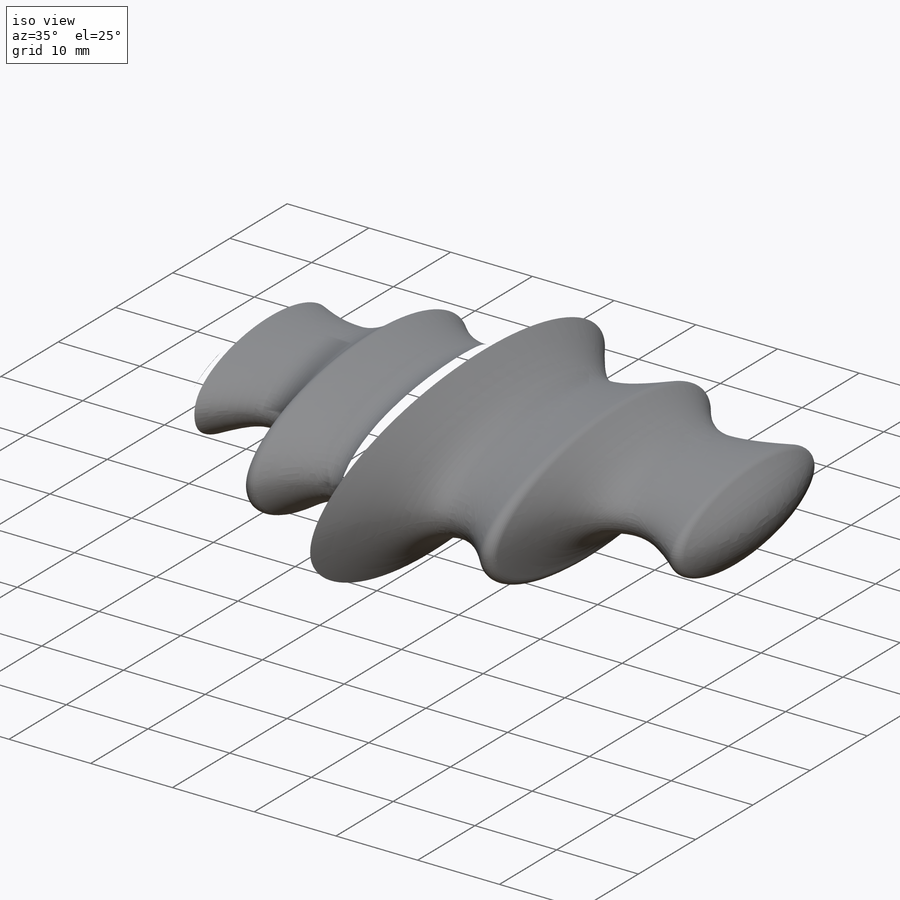
[diagram: iso view]
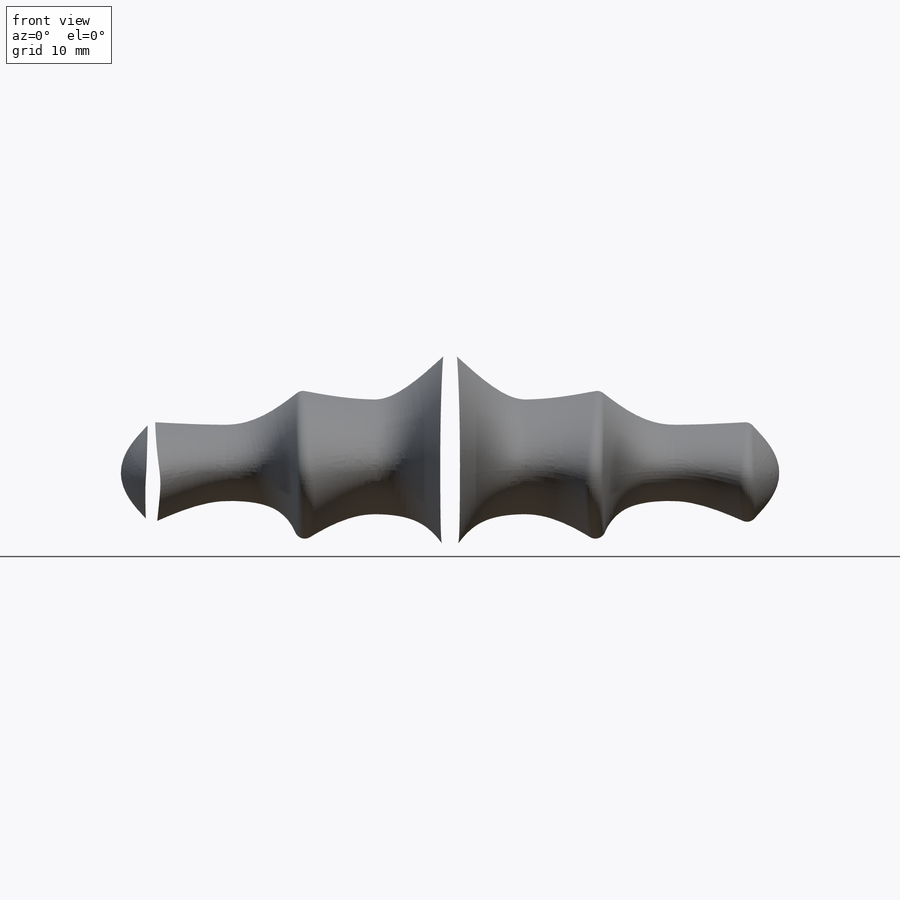
[diagram: front view]
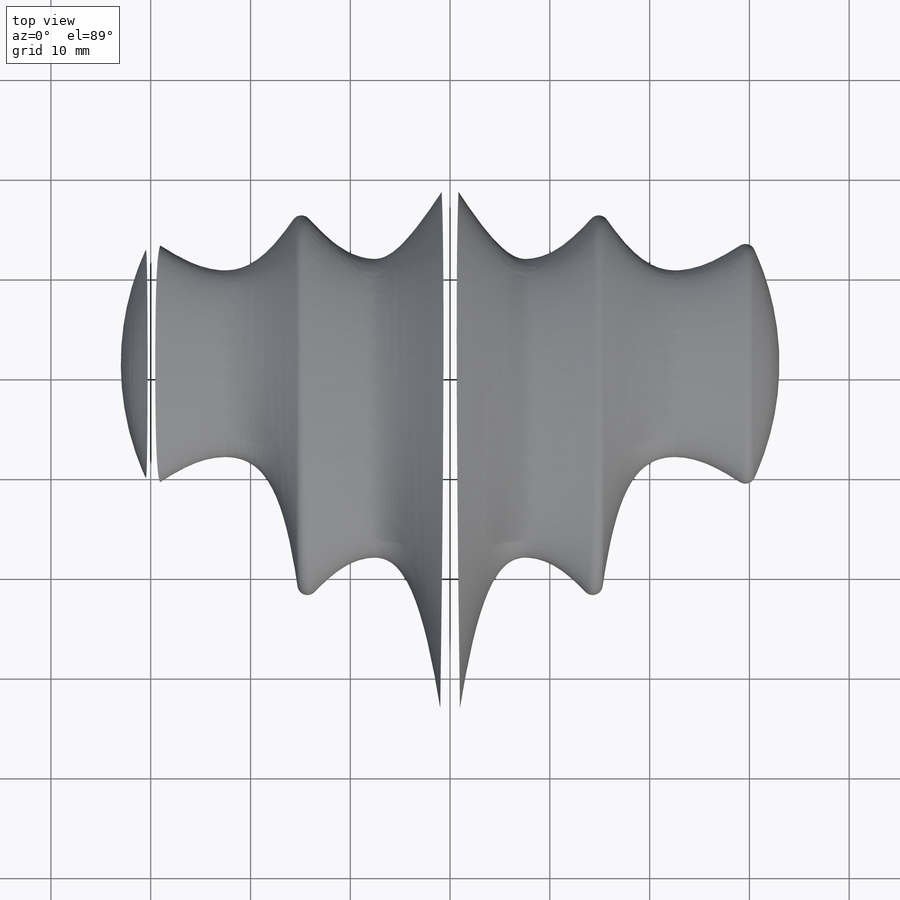
[diagram: top view]
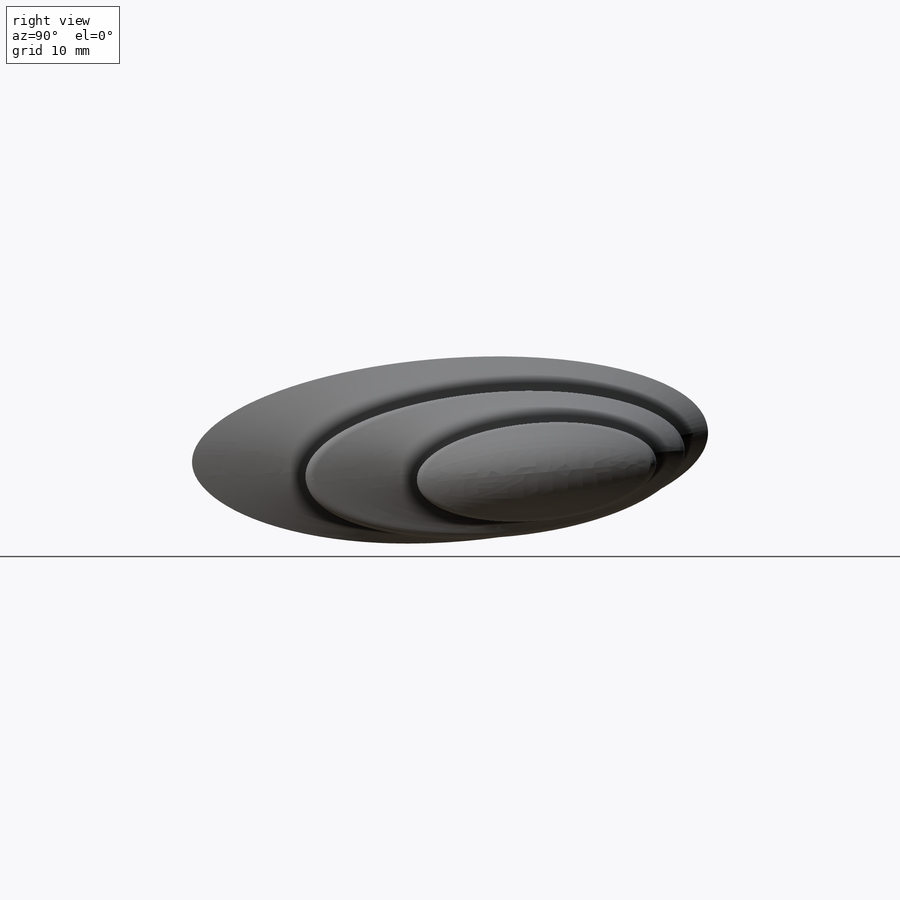
[diagram: right view]
SOLIDWORKS PART (.sldprt)
format: sldprt  version: not decoded by parser v0  size: 968,704 bytes
history: native  units: mm
features: sketch x7, plane x3, move_body x2, delete_body x2, material x1, mirror x1, fillet x1 (+8 scaffold rows collapsed)
feature tree (25):
  scaffold x8  (default folders/planes/origin — collapsed)
  material  "Material <nicht festgelegt>"
  plane  "Vorderansicht"
  plane  "Draufsicht"
  plane  "Seitenansicht"
  sketch  "Skizze1"  dims[c1.D1=60.0mm c1.D2=20.0mm c1.D3=~34.904336mm c2.D3=5.0deg]
  sketch  "Skizze2"  dims[D1=40.0mm D2=15.0mm D3=3.0mm]
  sketch  "Skizze3"  dims[D1=3.0mm D2=25.0mm D3=10.0mm]
  move_body  "Körper-Verschieben/Kopieren1"
  sketch  "Skizze4"  dims[D1=0.0mm]
  sketch  "Skizze5"  dims[D1=0.0mm]
  sketch  "Skizze6"
  move_body  "Skalieren2"
  sketch  "Skizze8"
  delete_body  "Körper-Löschen1"
  delete_body  "Körper-Löschen2"
  mirror  "Spiegeln1"
  fillet  "Verrundung1"  Radius=1mm
decode coverage: 6 of 13 modeling features carry decoded parameters
note: ~ marks probable driven/reference dimensions
note: suppression state not decoded; provenance and decode notes live in map.json
